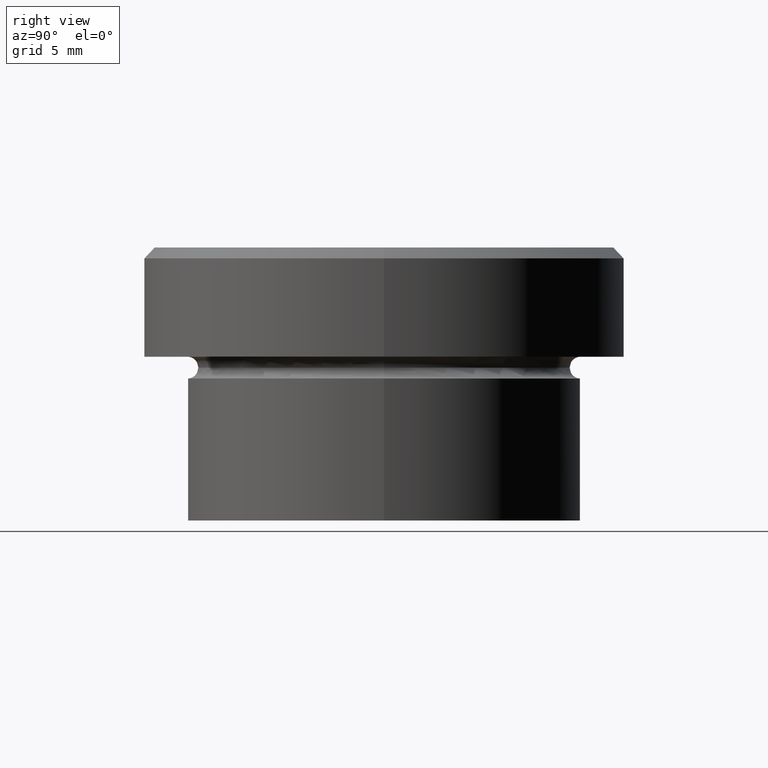
[diagram: clean part render]
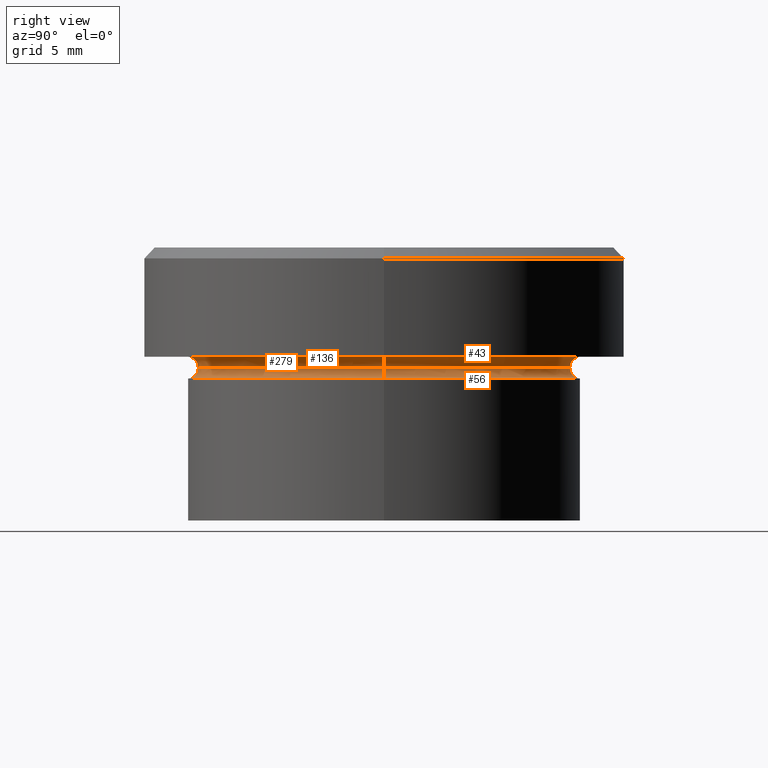
[diagram: same view with one multi-face feature highlighted, each face labeled with its STEP entity id]
A machine part, right view. The highlighted faces form ONE feature: a constant-radius fillet chain: 4 tangent blend faces with common blend radius 0.5 mm. The faces share edges in the B-rep.
Their STEP definitions:
[1] entity #136 (Torus):
#9 = EDGE_LOOP ( 'NONE', ( #50, #408, #142, #325 ) ) ;
#14 = CARTESIAN_POINT ( 'NONE',  ( -9.000000000000000000, 1.102182119232617714E-15, -6.000000000000000000 ) ) ;
#15 = DIRECTION ( 'NONE',  ( 0.000000000000000000, 0.000000000000000000, -1.000000000000000000 ) ) ;
#50 = ORIENTED_EDGE ( 'NONE', *, *, #384, .F. ) ;
#55 = CARTESIAN_POINT ( 'NONE',  ( 9.000000000000000000, 0.000000000000000000, -6.000000000000000000 ) ) ;
#81 = DIRECTION ( 'NONE',  ( 1.224646799147353207E-16, 1.000000000000000000, 0.000000000000000000 ) ) ;
#103 = CARTESIAN_POINT ( 'NONE',  ( 0.000000000000000000, 0.000000000000000000, -6.000000000000000000 ) ) ;
#108 = AXIS2_PLACEMENT_3D ( 'NONE', #150, #271, #129 ) ;
#129 = DIRECTION ( 'NONE',  ( 1.000000000000000000, 0.000000000000000000, 0.000000000000000000 ) ) ;
#136 = ADVANCED_FACE ( 'NONE', ( #399 ), #194, .F. ) ;
#142 = ORIENTED_EDGE ( 'NONE', *, *, #312, .T. ) ;
#147 = AXIS2_PLACEMENT_3D ( 'NONE', #215, #269, #15 ) ;
#150 = CARTESIAN_POINT ( 'NONE',  ( 0.000000000000000000, 0.000000000000000000, -5.500000000000000000 ) ) ;
#153 = DIRECTION ( 'NONE',  ( -1.000000000000000000, 1.224646799147353454E-16, 0.000000000000000000 ) ) ;
#175 = CIRCLE ( 'NONE', #188, 9.000000000000000000 ) ;
#188 = AXIS2_PLACEMENT_3D ( 'NONE', #103, #350, #313 ) ;
#190 = VERTEX_POINT ( 'NONE', #14 ) ;
#191 = EDGE_CURVE ( 'NONE', #391, #233, #316, .T. ) ;
#193 = CIRCLE ( 'NONE', #108, 8.499999999999998224 ) ;
#194 = TOROIDAL_SURFACE ( 'NONE', #348, 9.000000000000000000, 0.5000000000000000000 ) ;
#208 = EDGE_CURVE ( 'NONE', #378, #190, #404, .T. ) ;
#215 = CARTESIAN_POINT ( 'NONE',  ( 9.000000000000000000, 0.000000000000000000, -5.500000000000000000 ) ) ;
#233 = VERTEX_POINT ( 'NONE', #55 ) ;
#269 = DIRECTION ( 'NONE',  ( 0.000000000000000000, -1.000000000000000000, 0.000000000000000000 ) ) ;
#271 = DIRECTION ( 'NONE',  ( -0.000000000000000000, -0.000000000000000000, 1.000000000000000000 ) ) ;
#312 = EDGE_CURVE ( 'NONE', #190, #233, #175, .T. ) ;
#313 = DIRECTION ( 'NONE',  ( 1.000000000000000000, 0.000000000000000000, 0.000000000000000000 ) ) ;
#316 = CIRCLE ( 'NONE', #147, 0.5000000000000004441 ) ;
#324 = DIRECTION ( 'NONE',  ( 1.000000000000000000, 0.000000000000000000, 0.000000000000000000 ) ) ;
#325 = ORIENTED_EDGE ( 'NONE', *, *, #191, .F. ) ;
#330 = CARTESIAN_POINT ( 'NONE',  ( 0.000000000000000000, 0.000000000000000000, -5.500000000000000000 ) ) ;
#333 = CARTESIAN_POINT ( 'NONE',  ( -9.000000000000000000, 1.102182119232617714E-15, -5.500000000000000000 ) ) ;
#347 = CARTESIAN_POINT ( 'NONE',  ( -8.499999999999998224, 1.071565949253933927E-15, -5.500000000000000000 ) ) ;
#348 = AXIS2_PLACEMENT_3D ( 'NONE', #330, #362, #324 ) ;
#350 = DIRECTION ( 'NONE',  ( -0.000000000000000000, -0.000000000000000000, 1.000000000000000000 ) ) ;
#357 = AXIS2_PLACEMENT_3D ( 'NONE', #333, #81, #153 ) ;
#362 = DIRECTION ( 'NONE',  ( -0.000000000000000000, -0.000000000000000000, 1.000000000000000000 ) ) ;
#372 = CARTESIAN_POINT ( 'NONE',  ( 8.499999999999998224, 0.000000000000000000, -5.500000000000000000 ) ) ;
#378 = VERTEX_POINT ( 'NONE', #347 ) ;
#384 = EDGE_CURVE ( 'NONE', #378, #391, #193, .T. ) ;
#391 = VERTEX_POINT ( 'NONE', #372 ) ;
#399 = FACE_OUTER_BOUND ( 'NONE', #9, .T. ) ;
#404 = CIRCLE ( 'NONE', #357, 0.5000000000000004441 ) ;
#408 = ORIENTED_EDGE ( 'NONE', *, *, #208, .T. ) ;
[2] entity #56 (Torus):
#14 = CARTESIAN_POINT ( 'NONE',  ( -9.000000000000000000, 1.102182119232617714E-15, -6.000000000000000000 ) ) ;
#15 = DIRECTION ( 'NONE',  ( 0.000000000000000000, 0.000000000000000000, -1.000000000000000000 ) ) ;
#26 = AXIS2_PLACEMENT_3D ( 'NONE', #237, #75, #79 ) ;
#33 = CARTESIAN_POINT ( 'NONE',  ( 0.000000000000000000, 0.000000000000000000, -6.000000000000000000 ) ) ;
#35 = DIRECTION ( 'NONE',  ( 1.000000000000000000, 0.000000000000000000, 0.000000000000000000 ) ) ;
#55 = CARTESIAN_POINT ( 'NONE',  ( 9.000000000000000000, 0.000000000000000000, -6.000000000000000000 ) ) ;
#56 = ADVANCED_FACE ( 'NONE', ( #243 ), #80, .F. ) ;
#66 = DIRECTION ( 'NONE',  ( -0.000000000000000000, -0.000000000000000000, 1.000000000000000000 ) ) ;
#75 = DIRECTION ( 'NONE',  ( -0.000000000000000000, -0.000000000000000000, 1.000000000000000000 ) ) ;
#79 = DIRECTION ( 'NONE',  ( 1.000000000000000000, 0.000000000000000000, 0.000000000000000000 ) ) ;
#80 = TOROIDAL_SURFACE ( 'NONE', #192, 9.000000000000000000, 0.5000000000000000000 ) ;
#81 = DIRECTION ( 'NONE',  ( 1.224646799147353207E-16, 1.000000000000000000, 0.000000000000000000 ) ) ;
#95 = CIRCLE ( 'NONE', #26, 8.499999999999998224 ) ;
#113 = ORIENTED_EDGE ( 'NONE', *, *, #128, .F. ) ;
#116 = AXIS2_PLACEMENT_3D ( 'NONE', #33, #66, #35 ) ;
#119 = DIRECTION ( 'NONE',  ( -0.000000000000000000, -0.000000000000000000, 1.000000000000000000 ) ) ;
#128 = EDGE_CURVE ( 'NONE', #391, #378, #95, .T. ) ;
#147 = AXIS2_PLACEMENT_3D ( 'NONE', #215, #269, #15 ) ;
#153 = DIRECTION ( 'NONE',  ( -1.000000000000000000, 1.224646799147353454E-16, 0.000000000000000000 ) ) ;
#190 = VERTEX_POINT ( 'NONE', #14 ) ;
#191 = EDGE_CURVE ( 'NONE', #391, #233, #316, .T. ) ;
#192 = AXIS2_PLACEMENT_3D ( 'NONE', #275, #119, #374 ) ;
#208 = EDGE_CURVE ( 'NONE', #378, #190, #404, .T. ) ;
#215 = CARTESIAN_POINT ( 'NONE',  ( 9.000000000000000000, 0.000000000000000000, -5.500000000000000000 ) ) ;
#233 = VERTEX_POINT ( 'NONE', #55 ) ;
#236 = CIRCLE ( 'NONE', #116, 9.000000000000000000 ) ;
#237 = CARTESIAN_POINT ( 'NONE',  ( 0.000000000000000000, 0.000000000000000000, -5.500000000000000000 ) ) ;
#243 = FACE_OUTER_BOUND ( 'NONE', #263, .T. ) ;
#250 = ORIENTED_EDGE ( 'NONE', *, *, #321, .T. ) ;
#263 = EDGE_LOOP ( 'NONE', ( #300, #113, #359, #250 ) ) ;
#269 = DIRECTION ( 'NONE',  ( 0.000000000000000000, -1.000000000000000000, 0.000000000000000000 ) ) ;
#275 = CARTESIAN_POINT ( 'NONE',  ( 0.000000000000000000, 0.000000000000000000, -5.500000000000000000 ) ) ;
#300 = ORIENTED_EDGE ( 'NONE', *, *, #208, .F. ) ;
#316 = CIRCLE ( 'NONE', #147, 0.5000000000000004441 ) ;
#321 = EDGE_CURVE ( 'NONE', #233, #190, #236, .T. ) ;
#333 = CARTESIAN_POINT ( 'NONE',  ( -9.000000000000000000, 1.102182119232617714E-15, -5.500000000000000000 ) ) ;
#347 = CARTESIAN_POINT ( 'NONE',  ( -8.499999999999998224, 1.071565949253933927E-15, -5.500000000000000000 ) ) ;
#357 = AXIS2_PLACEMENT_3D ( 'NONE', #333, #81, #153 ) ;
#359 = ORIENTED_EDGE ( 'NONE', *, *, #191, .T. ) ;
#372 = CARTESIAN_POINT ( 'NONE',  ( 8.499999999999998224, 0.000000000000000000, -5.500000000000000000 ) ) ;
#374 = DIRECTION ( 'NONE',  ( 1.000000000000000000, 0.000000000000000000, 0.000000000000000000 ) ) ;
#378 = VERTEX_POINT ( 'NONE', #347 ) ;
#391 = VERTEX_POINT ( 'NONE', #372 ) ;
#404 = CIRCLE ( 'NONE', #357, 0.5000000000000004441 ) ;
[3] entity #43 (Torus):
#2 = AXIS2_PLACEMENT_3D ( 'NONE', #45, #10, #110 ) ;
#6 = ORIENTED_EDGE ( 'NONE', *, *, #29, .F. ) ;
#10 = DIRECTION ( 'NONE',  ( -0.000000000000000000, -1.000000000000000000, -0.000000000000000000 ) ) ;
#19 = CARTESIAN_POINT ( 'NONE',  ( -9.000000000000000000, 0.000000000000000000, -4.999999999999999112 ) ) ;
#24 = DIRECTION ( 'NONE',  ( -1.224646799147353207E-16, 1.000000000000000000, 0.000000000000000000 ) ) ;
#26 = AXIS2_PLACEMENT_3D ( 'NONE', #237, #75, #79 ) ;
#27 = DIRECTION ( 'NONE',  ( -1.000000000000000000, -1.224646799147353454E-16, 0.000000000000000000 ) ) ;
#29 = EDGE_CURVE ( 'NONE', #391, #395, #202, .T. ) ;
#40 = ORIENTED_EDGE ( 'NONE', *, *, #128, .T. ) ;
#43 = ADVANCED_FACE ( 'NONE', ( #149 ), #99, .F. ) ;
#45 = CARTESIAN_POINT ( 'NONE',  ( -9.000000000000000000, 0.000000000000000000, -5.500000000000000000 ) ) ;
#53 = CARTESIAN_POINT ( 'NONE',  ( 0.000000000000000000, 0.000000000000000000, -5.500000000000000000 ) ) ;
#59 = EDGE_LOOP ( 'NONE', ( #6, #40, #74, #183 ) ) ;
#60 = DIRECTION ( 'NONE',  ( -1.000000000000000000, 0.000000000000000000, 0.000000000000000000 ) ) ;
#74 = ORIENTED_EDGE ( 'NONE', *, *, #162, .T. ) ;
#75 = DIRECTION ( 'NONE',  ( -0.000000000000000000, -0.000000000000000000, 1.000000000000000000 ) ) ;
#79 = DIRECTION ( 'NONE',  ( 1.000000000000000000, 0.000000000000000000, 0.000000000000000000 ) ) ;
#95 = CIRCLE ( 'NONE', #26, 8.499999999999998224 ) ;
#99 = TOROIDAL_SURFACE ( 'NONE', #292, 9.000000000000000000, 0.5000000000000000000 ) ;
#110 = DIRECTION ( 'NONE',  ( 0.000000000000000000, 0.000000000000000000, -1.000000000000000000 ) ) ;
#125 = AXIS2_PLACEMENT_3D ( 'NONE', #303, #24, #27 ) ;
#127 = CARTESIAN_POINT ( 'NONE',  ( 9.000000000000000000, 1.102182119232617714E-15, -4.999999999999999112 ) ) ;
#128 = EDGE_CURVE ( 'NONE', #391, #378, #95, .T. ) ;
#149 = FACE_OUTER_BOUND ( 'NONE', #59, .T. ) ;
#156 = DIRECTION ( 'NONE',  ( -1.000000000000000000, 0.000000000000000000, 0.000000000000000000 ) ) ;
#162 = EDGE_CURVE ( 'NONE', #378, #387, #373, .T. ) ;
#166 = AXIS2_PLACEMENT_3D ( 'NONE', #273, #217, #60 ) ;
#183 = ORIENTED_EDGE ( 'NONE', *, *, #338, .F. ) ;
#202 = CIRCLE ( 'NONE', #125, 0.5000000000000004441 ) ;
#217 = DIRECTION ( 'NONE',  ( -0.000000000000000000, -0.000000000000000000, 1.000000000000000000 ) ) ;
#219 = DIRECTION ( 'NONE',  ( 0.000000000000000000, 0.000000000000000000, -1.000000000000000000 ) ) ;
#237 = CARTESIAN_POINT ( 'NONE',  ( 0.000000000000000000, 0.000000000000000000, -5.500000000000000000 ) ) ;
#273 = CARTESIAN_POINT ( 'NONE',  ( 0.000000000000000000, 0.000000000000000000, -5.000000000000000000 ) ) ;
#292 = AXIS2_PLACEMENT_3D ( 'NONE', #53, #219, #156 ) ;
#303 = CARTESIAN_POINT ( 'NONE',  ( 9.000000000000000000, 1.102182119232617714E-15, -5.500000000000000000 ) ) ;
#338 = EDGE_CURVE ( 'NONE', #395, #387, #342, .T. ) ;
#342 = CIRCLE ( 'NONE', #166, 9.000000000000000000 ) ;
#347 = CARTESIAN_POINT ( 'NONE',  ( -8.499999999999998224, 1.071565949253933927E-15, -5.500000000000000000 ) ) ;
#372 = CARTESIAN_POINT ( 'NONE',  ( 8.499999999999998224, 0.000000000000000000, -5.500000000000000000 ) ) ;
#373 = CIRCLE ( 'NONE', #2, 0.5000000000000004441 ) ;
#378 = VERTEX_POINT ( 'NONE', #347 ) ;
#387 = VERTEX_POINT ( 'NONE', #19 ) ;
#391 = VERTEX_POINT ( 'NONE', #372 ) ;
#395 = VERTEX_POINT ( 'NONE', #127 ) ;
[4] entity #279 (Torus):
#2 = AXIS2_PLACEMENT_3D ( 'NONE', #45, #10, #110 ) ;
#8 = DIRECTION ( 'NONE',  ( -1.000000000000000000, 0.000000000000000000, 0.000000000000000000 ) ) ;
#10 = DIRECTION ( 'NONE',  ( -0.000000000000000000, -1.000000000000000000, -0.000000000000000000 ) ) ;
#13 = CARTESIAN_POINT ( 'NONE',  ( 0.000000000000000000, 0.000000000000000000, -5.000000000000000000 ) ) ;
#19 = CARTESIAN_POINT ( 'NONE',  ( -9.000000000000000000, 0.000000000000000000, -4.999999999999999112 ) ) ;
#24 = DIRECTION ( 'NONE',  ( -1.224646799147353207E-16, 1.000000000000000000, 0.000000000000000000 ) ) ;
#27 = DIRECTION ( 'NONE',  ( -1.000000000000000000, -1.224646799147353454E-16, 0.000000000000000000 ) ) ;
#29 = EDGE_CURVE ( 'NONE', #391, #395, #202, .T. ) ;
#30 = ORIENTED_EDGE ( 'NONE', *, *, #162, .F. ) ;
#37 = AXIS2_PLACEMENT_3D ( 'NONE', #13, #141, #58 ) ;
#45 = CARTESIAN_POINT ( 'NONE',  ( -9.000000000000000000, 0.000000000000000000, -5.500000000000000000 ) ) ;
#58 = DIRECTION ( 'NONE',  ( -1.000000000000000000, 0.000000000000000000, 0.000000000000000000 ) ) ;
#108 = AXIS2_PLACEMENT_3D ( 'NONE', #150, #271, #129 ) ;
#110 = DIRECTION ( 'NONE',  ( 0.000000000000000000, 0.000000000000000000, -1.000000000000000000 ) ) ;
#121 = AXIS2_PLACEMENT_3D ( 'NONE', #228, #385, #8 ) ;
#125 = AXIS2_PLACEMENT_3D ( 'NONE', #303, #24, #27 ) ;
#127 = CARTESIAN_POINT ( 'NONE',  ( 9.000000000000000000, 1.102182119232617714E-15, -4.999999999999999112 ) ) ;
#129 = DIRECTION ( 'NONE',  ( 1.000000000000000000, 0.000000000000000000, 0.000000000000000000 ) ) ;
#141 = DIRECTION ( 'NONE',  ( -0.000000000000000000, -0.000000000000000000, 1.000000000000000000 ) ) ;
#150 = CARTESIAN_POINT ( 'NONE',  ( 0.000000000000000000, 0.000000000000000000, -5.500000000000000000 ) ) ;
#157 = ORIENTED_EDGE ( 'NONE', *, *, #29, .T. ) ;
#162 = EDGE_CURVE ( 'NONE', #378, #387, #373, .T. ) ;
#163 = TOROIDAL_SURFACE ( 'NONE', #121, 9.000000000000000000, 0.5000000000000000000 ) ;
#193 = CIRCLE ( 'NONE', #108, 8.499999999999998224 ) ;
#196 = FACE_OUTER_BOUND ( 'NONE', #398, .T. ) ;
#200 = ORIENTED_EDGE ( 'NONE', *, *, #384, .T. ) ;
#202 = CIRCLE ( 'NONE', #125, 0.5000000000000004441 ) ;
#221 = CIRCLE ( 'NONE', #37, 9.000000000000000000 ) ;
#228 = CARTESIAN_POINT ( 'NONE',  ( 0.000000000000000000, 0.000000000000000000, -5.500000000000000000 ) ) ;
#271 = DIRECTION ( 'NONE',  ( -0.000000000000000000, -0.000000000000000000, 1.000000000000000000 ) ) ;
#279 = ADVANCED_FACE ( 'NONE', ( #196 ), #163, .F. ) ;
#303 = CARTESIAN_POINT ( 'NONE',  ( 9.000000000000000000, 1.102182119232617714E-15, -5.500000000000000000 ) ) ;
#347 = CARTESIAN_POINT ( 'NONE',  ( -8.499999999999998224, 1.071565949253933927E-15, -5.500000000000000000 ) ) ;
#358 = EDGE_CURVE ( 'NONE', #387, #395, #221, .T. ) ;
#372 = CARTESIAN_POINT ( 'NONE',  ( 8.499999999999998224, 0.000000000000000000, -5.500000000000000000 ) ) ;
#373 = CIRCLE ( 'NONE', #2, 0.5000000000000004441 ) ;
#375 = ORIENTED_EDGE ( 'NONE', *, *, #358, .F. ) ;
#378 = VERTEX_POINT ( 'NONE', #347 ) ;
#384 = EDGE_CURVE ( 'NONE', #378, #391, #193, .T. ) ;
#385 = DIRECTION ( 'NONE',  ( 0.000000000000000000, 0.000000000000000000, -1.000000000000000000 ) ) ;
#387 = VERTEX_POINT ( 'NONE', #19 ) ;
#391 = VERTEX_POINT ( 'NONE', #372 ) ;
#395 = VERTEX_POINT ( 'NONE', #127 ) ;
#398 = EDGE_LOOP ( 'NONE', ( #200, #157, #375, #30 ) ) ;